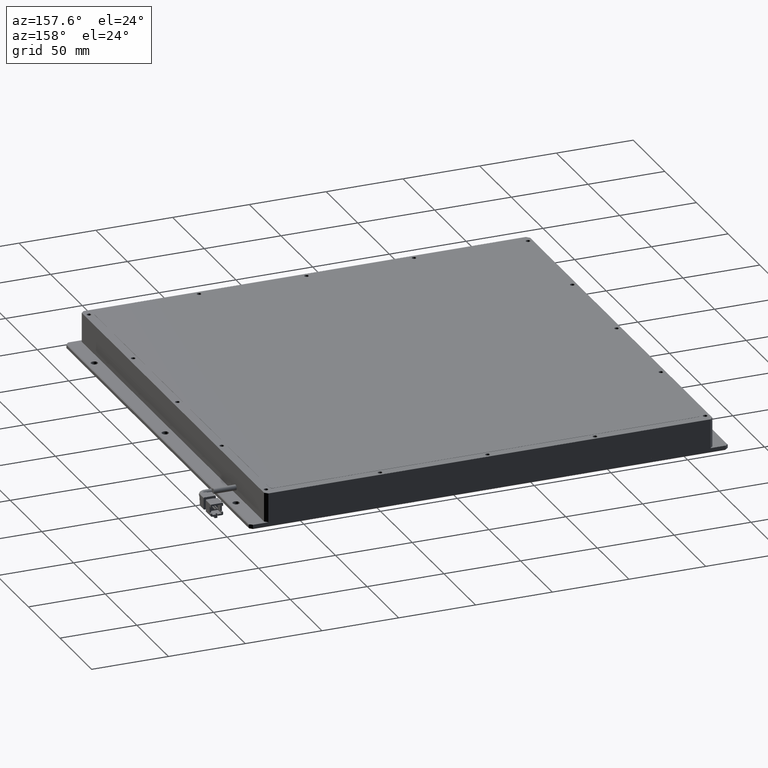
[diagram: clean part render]
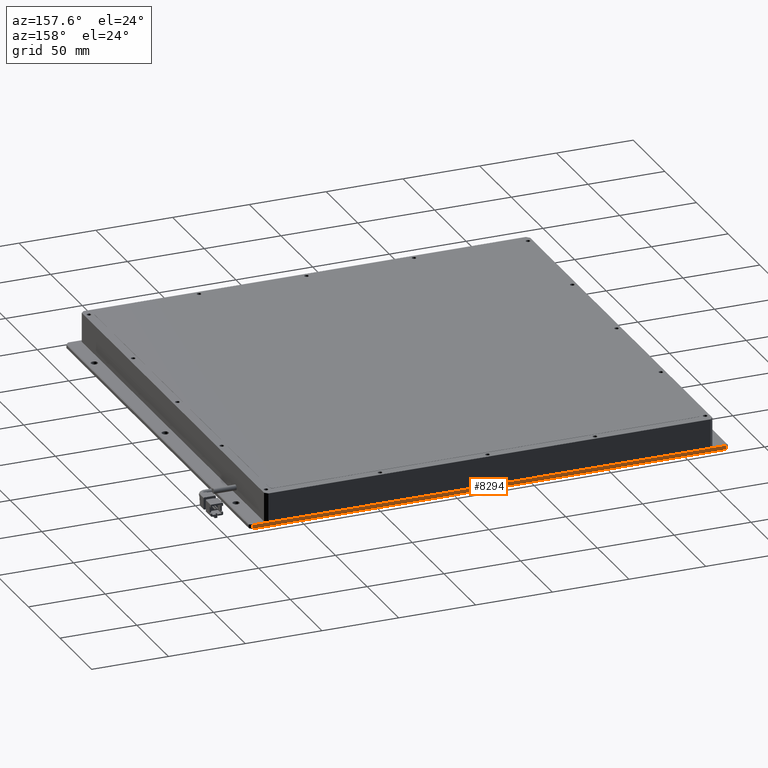
[diagram: same view with one face highlighted and labeled with its STEP entity id]
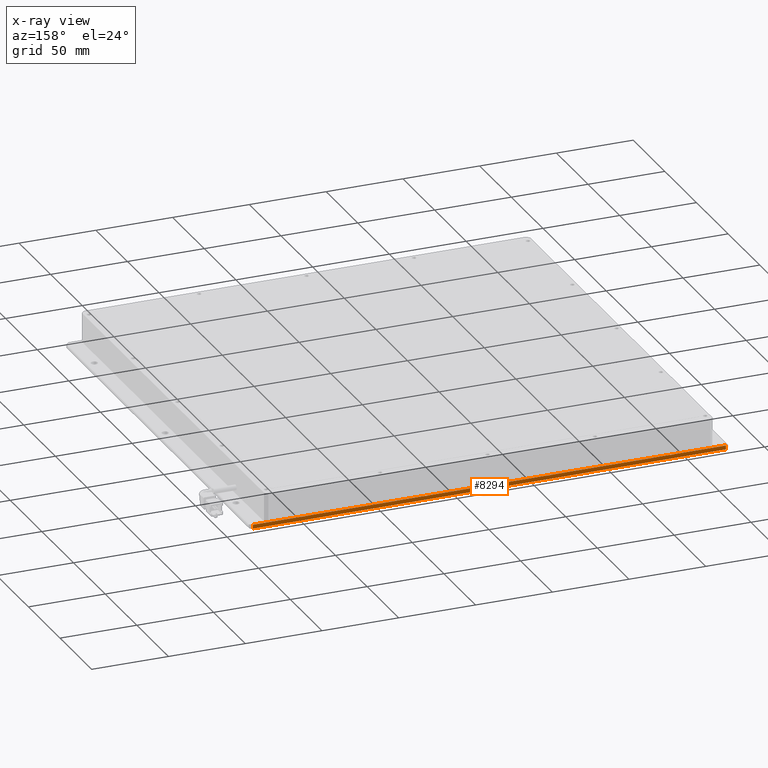
[diagram: x-ray of the same camera — body ghosted, the highlighted face saturated]
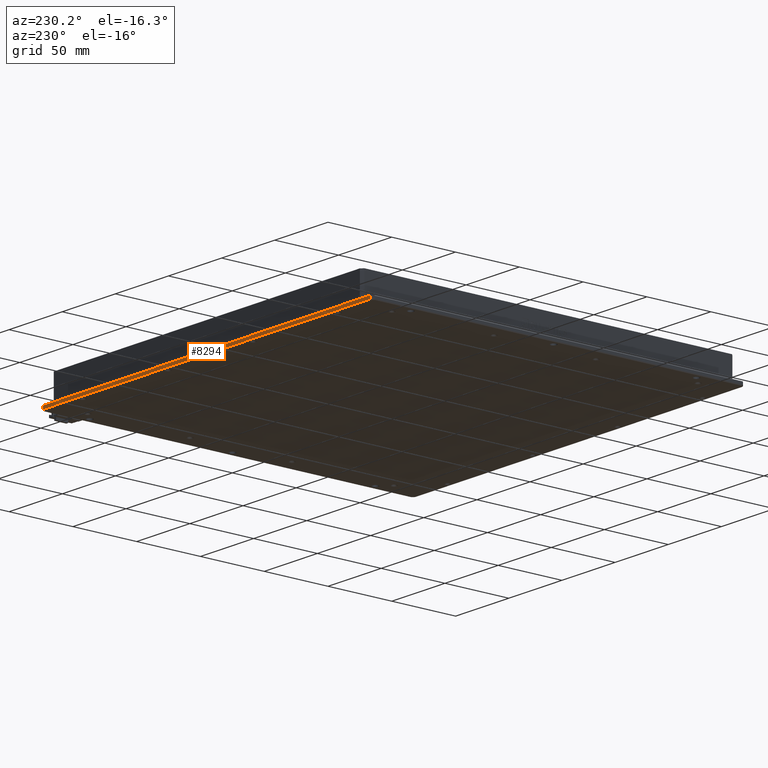
[diagram: same view with one face highlighted and labeled with its STEP entity id]
A machine part, auxiliary view. The second image highlights one B-rep face of the part: STEP entity #8294.
The next image is the same camera in x-ray: the body ghosted, the highlighted face saturated — about 0% of this face is hidden behind the body in this view.
A second angle (auxiliary view) of the same face is appended — the face is thin or edge-on in the first view.
In plain terms, the highlighted planar face has unit normal (0, -1, 0).
Its self-contained STEP definition (entity closure, byte-faithful):
#228 = EDGE_CURVE ( 'NONE', #3490, #9723, #22390, .T. ) ;
#1243 = CARTESIAN_POINT ( 'NONE',  ( 186.9193228736580700, 159.2698045692266900, -8.500000000028196100 ) ) ;
#2703 = DIRECTION ( 'NONE',  ( 1.000000000000000000, -0.0000000000000000000, 0.0000000000000000000 ) ) ;
#3247 = VECTOR ( 'NONE', #15667, 1000.000000000000000 ) ;
#3482 = VECTOR ( 'NONE', #4140, 1000.000000000000000 ) ;
#3490 = VERTEX_POINT ( 'NONE', #3663 ) ;
#3663 = CARTESIAN_POINT ( 'NONE',  ( -121.0806771263419100, 159.2698045692266400, -8.500000000028196100 ) ) ;
#4140 = DIRECTION ( 'NONE',  ( 0.0000000000000000000, -0.0000000000000000000, -1.000000000000000000 ) ) ;
#4330 = CARTESIAN_POINT ( 'NONE',  ( -121.0806771263419100, 159.2698045692266400, -8.500000000028196100 ) ) ;
#4416 = EDGE_LOOP ( 'NONE', ( #6527, #5588, #22012, #15094 ) ) ;
#4812 = CARTESIAN_POINT ( 'NONE',  ( 186.9193228736580500, 159.2698045692266900, -8.500000000028196100 ) ) ;
#5373 = CARTESIAN_POINT ( 'NONE',  ( -121.0806771263419100, 159.2698045692266400, -11.00000000002819600 ) ) ;
#5588 = ORIENTED_EDGE ( 'NONE', *, *, #228, .T. ) ;
#6527 = ORIENTED_EDGE ( 'NONE', *, *, #7706, .F. ) ;
#7706 = EDGE_CURVE ( 'NONE', #3490, #12321, #15535, .T. ) ;
#8294 = ADVANCED_FACE ( 'NONE', ( #15832 ), #13035, .F. ) ;
#8462 = VERTEX_POINT ( 'NONE', #20125 ) ;
#8730 = DIRECTION ( 'NONE',  ( 0.0000000000000000000, -1.000000000000000000, 0.0000000000000000000 ) ) ;
#8857 = LINE ( 'NONE', #4812, #3247 ) ;
#9723 = VERTEX_POINT ( 'NONE', #1243 ) ;
#9989 = VECTOR ( 'NONE', #25032, 1000.000000000000000 ) ;
#10952 = VECTOR ( 'NONE', #2703, 1000.000000000000000 ) ;
#12321 = VERTEX_POINT ( 'NONE', #5373 ) ;
#13035 = PLANE ( 'NONE',  #15660 ) ;
#13693 = EDGE_CURVE ( 'NONE', #9723, #8462, #8857, .T. ) ;
#15094 = ORIENTED_EDGE ( 'NONE', *, *, #24614, .F. ) ;
#15488 = CARTESIAN_POINT ( 'NONE',  ( -123.0806771263419100, 159.2698045692266400, -8.500000000028196100 ) ) ;
#15535 = LINE ( 'NONE', #4330, #3482 ) ;
#15660 = AXIS2_PLACEMENT_3D ( 'NONE', #21620, #8730, #23789 ) ;
#15667 = DIRECTION ( 'NONE',  ( -0.0000000000000000000, -0.0000000000000000000, -1.000000000000000000 ) ) ;
#15736 = LINE ( 'NONE', #18588, #9989 ) ;
#15832 = FACE_OUTER_BOUND ( 'NONE', #4416, .T. ) ;
#18588 = CARTESIAN_POINT ( 'NONE',  ( -123.0806771263419100, 159.2698045692266400, -11.00000000002819600 ) ) ;
#20125 = CARTESIAN_POINT ( 'NONE',  ( 186.9193228736582500, 159.2698045692266900, -11.00000000002819100 ) ) ;
#21620 = CARTESIAN_POINT ( 'NONE',  ( -123.0806771263419100, 159.2698045692266400, -8.500000000028196100 ) ) ;
#22012 = ORIENTED_EDGE ( 'NONE', *, *, #13693, .T. ) ;
#22390 = LINE ( 'NONE', #15488, #10952 ) ;
#23789 = DIRECTION ( 'NONE',  ( 0.0000000000000000000, -0.0000000000000000000, -1.000000000000000000 ) ) ;
#24614 = EDGE_CURVE ( 'NONE', #12321, #8462, #15736, .T. ) ;
#25032 = DIRECTION ( 'NONE',  ( 1.000000000000000000, 0.0000000000000000000, 0.0000000000000000000 ) ) ;